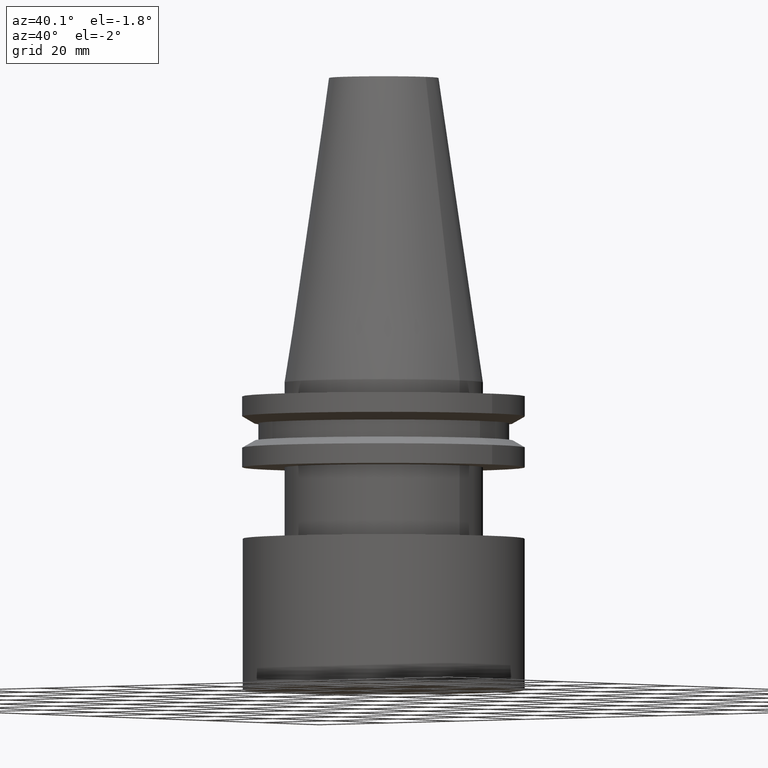
[diagram: clean part render]
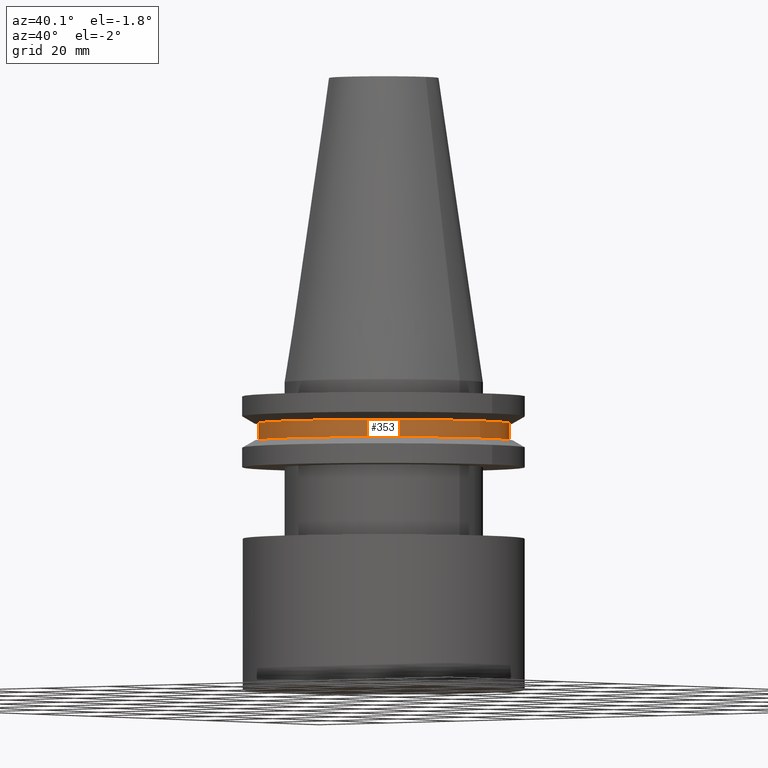
[diagram: same view with one face highlighted and labeled with its STEP entity id]
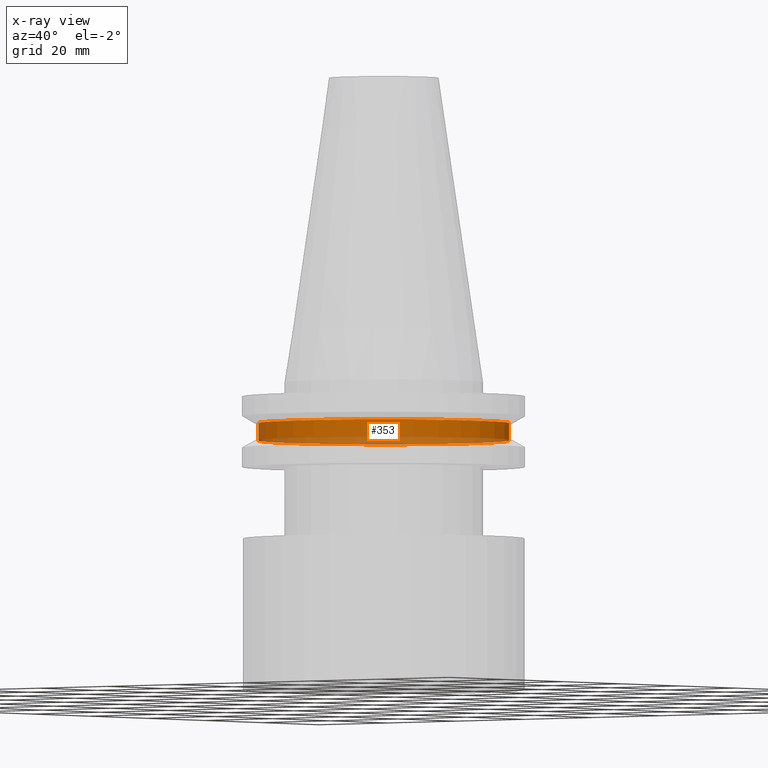
[diagram: x-ray of the same camera — body ghosted, the highlighted face saturated]
A machine part, auxiliary view. The second image highlights one B-rep face of the part: STEP entity #353.
The next image is the same camera in x-ray: the body ghosted, the highlighted face saturated — about 26% of this face is hidden behind the body in this view.
In plain terms, the highlighted cylindrical surface (bore or boss wall) has radius 28.18 mm, axis along (-0, -0, 1).
Its self-contained STEP definition (entity closure, byte-faithful):
#4 = ORIENTED_EDGE ( 'NONE', *, *, #39, .T. ) ;
#5 = DIRECTION ( 'NONE',  ( 1.000000000000000000, 0.000000000000000000, 0.000000000000000000 ) ) ;
#15 = CARTESIAN_POINT ( 'NONE',  ( 0.000000000000000000, 0.000000000000000000, -9.204999999999991189 ) ) ;
#21 = AXIS2_PLACEMENT_3D ( 'NONE', #15, #169, #70 ) ;
#28 = AXIS2_PLACEMENT_3D ( 'NONE', #280, #395, #254 ) ;
#39 = EDGE_CURVE ( 'NONE', #296, #296, #325, .T. ) ;
#70 = DIRECTION ( 'NONE',  ( 1.000000000000000000, 0.000000000000000000, 0.000000000000000000 ) ) ;
#72 = VERTEX_POINT ( 'NONE', #100 ) ;
#96 = EDGE_LOOP ( 'NONE', ( #4 ) ) ;
#99 = DIRECTION ( 'NONE',  ( -0.000000000000000000, -0.000000000000000000, 1.000000000000000000 ) ) ;
#100 = CARTESIAN_POINT ( 'NONE',  ( 28.17999999999999972, 0.000000000000000000, -9.204999999999991189 ) ) ;
#133 = EDGE_CURVE ( 'NONE', #72, #72, #275, .T. ) ;
#134 = CARTESIAN_POINT ( 'NONE',  ( 28.17999999999999972, 0.000000000000000000, -13.05499999999999794 ) ) ;
#143 = FACE_OUTER_BOUND ( 'NONE', #155, .T. ) ;
#155 = EDGE_LOOP ( 'NONE', ( #227 ) ) ;
#168 = AXIS2_PLACEMENT_3D ( 'NONE', #286, #99, #5 ) ;
#169 = DIRECTION ( 'NONE',  ( -0.000000000000000000, -0.000000000000000000, 1.000000000000000000 ) ) ;
#213 = FACE_OUTER_BOUND ( 'NONE', #96, .T. ) ;
#227 = ORIENTED_EDGE ( 'NONE', *, *, #133, .F. ) ;
#254 = DIRECTION ( 'NONE',  ( 1.000000000000000000, 0.000000000000000000, 0.000000000000000000 ) ) ;
#275 = CIRCLE ( 'NONE', #21, 28.17999999999999972 ) ;
#280 = CARTESIAN_POINT ( 'NONE',  ( 0.000000000000000000, 0.000000000000000000, 68.25000000000000000 ) ) ;
#286 = CARTESIAN_POINT ( 'NONE',  ( 0.000000000000000000, 0.000000000000000000, -13.05499999999999794 ) ) ;
#296 = VERTEX_POINT ( 'NONE', #134 ) ;
#306 = CYLINDRICAL_SURFACE ( 'NONE', #28, 28.17999999999999972 ) ;
#325 = CIRCLE ( 'NONE', #168, 28.17999999999999972 ) ;
#353 = ADVANCED_FACE ( 'NONE', ( #143, #213 ), #306, .T. ) ;
#395 = DIRECTION ( 'NONE',  ( -0.000000000000000000, -0.000000000000000000, 1.000000000000000000 ) ) ;